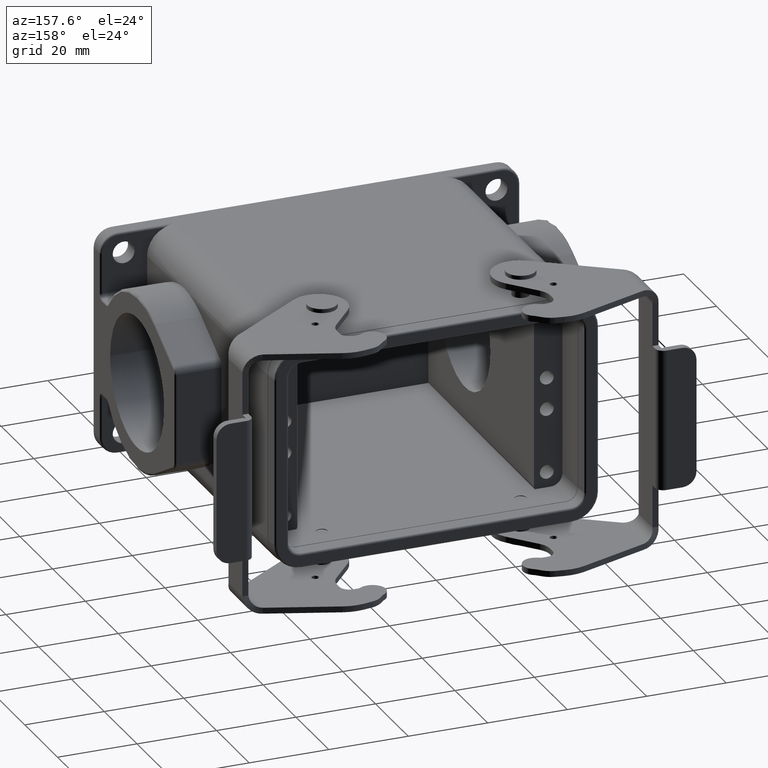
[diagram: clean part render]
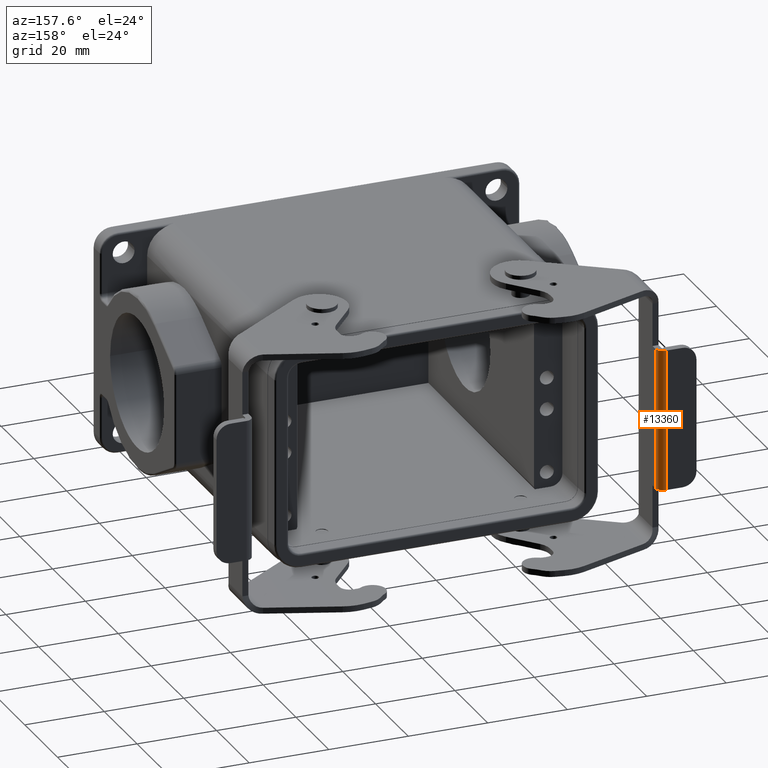
[diagram: same view with one face highlighted and labeled with its STEP entity id]
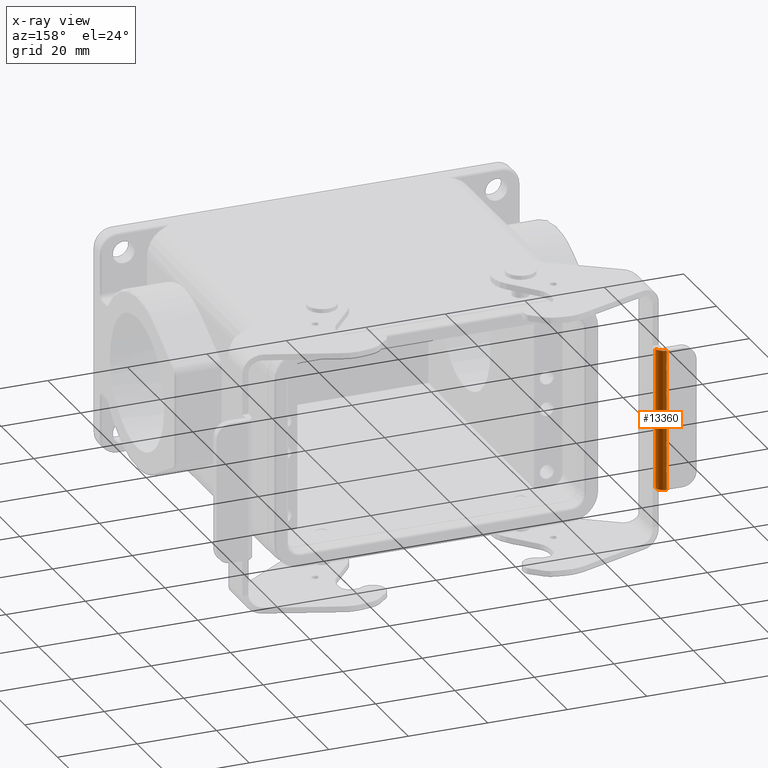
[diagram: x-ray of the same camera — body ghosted, the highlighted face saturated]
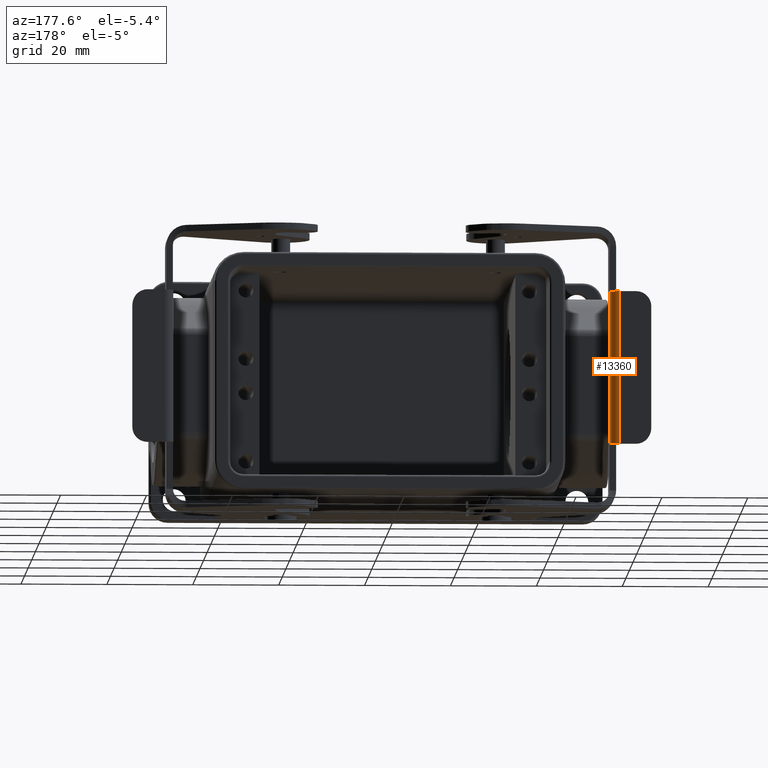
[diagram: same view with one face highlighted and labeled with its STEP entity id]
A machine part, auxiliary view. The second image highlights one B-rep face of the part: STEP entity #13360.
The next image is the same camera in x-ray: the body ghosted, the highlighted face saturated — about 0% of this face is hidden behind the body in this view.
A second angle (auxiliary view) of the same face is appended — the face is thin or edge-on in the first view.
In plain terms, the highlighted cylindrical surface (edge-blend (fillet) strip) has radius 2 mm, axis along (0, 0, -1).
Its self-contained STEP definition (entity closure, byte-faithful):
#11485=CARTESIAN_POINT('',(-5.284535736088E1,9.039377665503E1,
1.775000000001E1));
#11486=DIRECTION('',(0.E0,0.E0,-1.E0));
#11487=DIRECTION('',(6.264144758459E-10,1.E0,0.E0));
#11488=AXIS2_PLACEMENT_3D('',#11485,#11486,#11487);
#11544=CARTESIAN_POINT('',(-5.284535736088E1,9.039377665503E1,
-1.775000000002E1));
#11545=DIRECTION('',(0.E0,0.E0,-1.E0));
#11546=DIRECTION('',(7.227995979517E-11,1.E0,0.E0));
#11547=AXIS2_PLACEMENT_3D('',#11544,#11545,#11546);
#11883=DIRECTION('',(-1.431233222704E-11,-1.961498256464E-14,-1.E0));
#11884=VECTOR('',#11883,3.550000000001E1);
#11885=CARTESIAN_POINT('',(-5.284535736023E1,9.239377665503E1,1.775E1));
#11886=LINE('',#11885,#11884);
#11887=DIRECTION('',(2.441865176415E-14,-1.471203753501E-11,1.E0));
#11888=VECTOR('',#11887,3.550000000001E1);
#11889=CARTESIAN_POINT('',(-5.084535736085E1,9.039377665462E1,-1.775E1));
#11890=LINE('',#11889,#11888);
#11947=CARTESIAN_POINT('',(-5.084535736085E1,9.039377665410E1,1.775E1));
#11948=VERTEX_POINT('',#11947);
#11949=CARTESIAN_POINT('',(-5.284535735963E1,9.239377665503E1,
1.775000000001E1));
#11950=VERTEX_POINT('',#11949);
#11955=CARTESIAN_POINT('',(-5.284535736074E1,9.239377665503E1,-1.775E1));
#11956=VERTEX_POINT('',#11955);
#11973=CARTESIAN_POINT('',(-5.084535736085E1,9.039377665462E1,-1.775E1));
#11974=VERTEX_POINT('',#11973);
#13348=CARTESIAN_POINT('',(-5.284535736088E1,9.039377665503E1,
1.846000000001E1));
#13349=DIRECTION('',(0.E0,0.E0,-1.E0));
#13350=DIRECTION('',(6.427876096797E-1,-7.660444431247E-1,0.E0));
#13351=AXIS2_PLACEMENT_3D('',#13348,#13349,#13350);
#13352=CYLINDRICAL_SURFACE('',#13351,2.000000000001E0);
#13354=ORIENTED_EDGE('',*,*,#13353,.T.);
#13355=ORIENTED_EDGE('',*,*,#12844,.T.);
#13356=ORIENTED_EDGE('',*,*,#12605,.T.);
#13357=ORIENTED_EDGE('',*,*,#12774,.F.);
#13358=EDGE_LOOP('',(#13354,#13355,#13356,#13357));
#13359=FACE_OUTER_BOUND('',#13358,.F.);
#13360=ADVANCED_FACE('',(#13359),#13352,.T.);
#11489=CIRCLE('',#11488,2.000000000001E0);
#11548=CIRCLE('',#11547,2.000000000001E0);
#12605=EDGE_CURVE('',#11974,#11948,#11890,.T.);
#12774=EDGE_CURVE('',#11950,#11948,#11489,.T.);
#12844=EDGE_CURVE('',#11956,#11974,#11548,.T.);
#13353=EDGE_CURVE('',#11950,#11956,#11886,.T.);